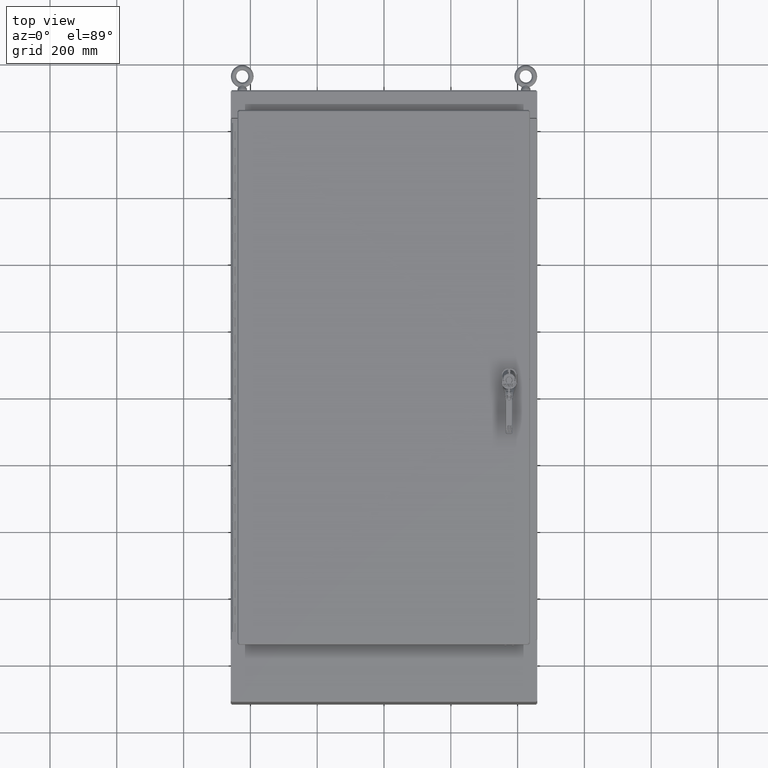
[diagram: clean part render]
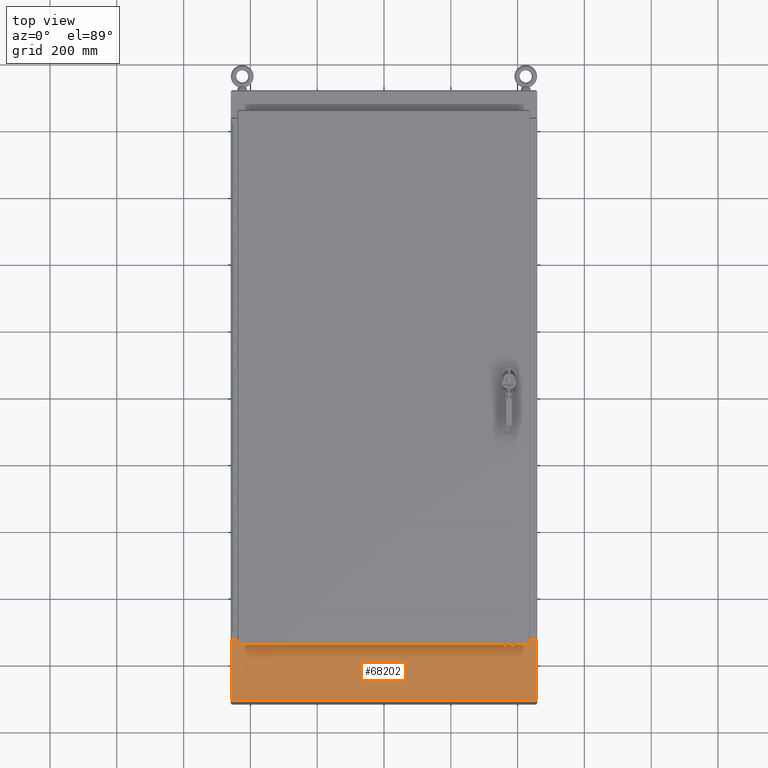
[diagram: same view with one face highlighted and labeled with its STEP entity id]
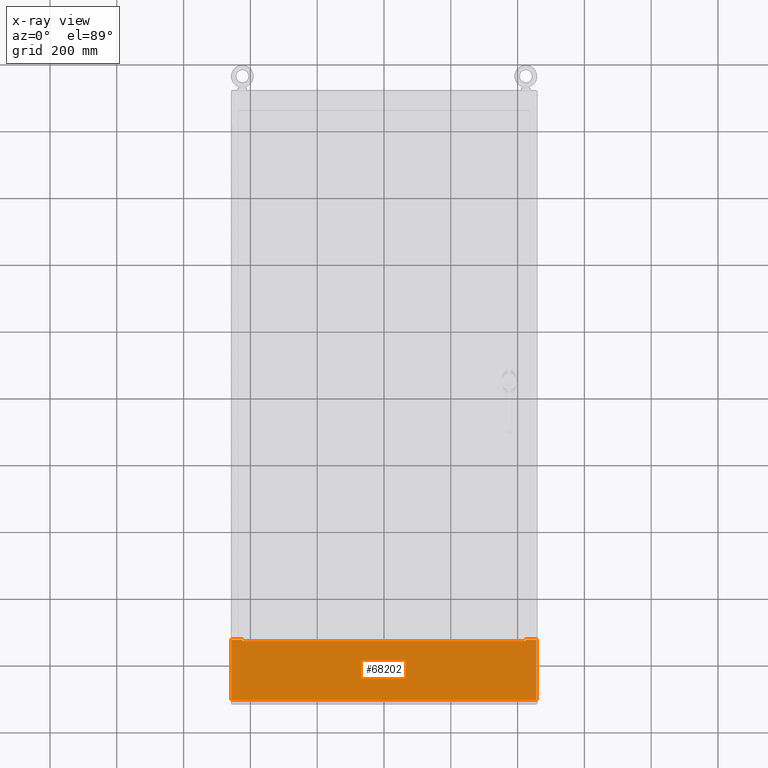
[diagram: x-ray of the same camera — body ghosted, the highlighted face saturated]
A machine part, top view. The second image highlights one B-rep face of the part: STEP entity #68202.
The next image is the same camera in x-ray: the body ghosted, the highlighted face saturated — about 0% of this face is hidden behind the body in this view.
In plain terms, the highlighted planar face has unit normal (0, -0, 1).
Its self-contained STEP definition (entity closure, byte-faithful):
#9289=PLANE('',#72041);
#10471=FACE_OUTER_BOUND('',#13423,.T.);
#13423=EDGE_LOOP('',(#50717,#50718,#50719,#50720,#50721,#50722,#50723,#50724,
#50725,#50726,#50727,#50728));
#20187=LINE('',#96623,#25305);
#20189=LINE('',#96629,#25307);
#20202=LINE('',#96668,#25320);
#20222=LINE('',#96709,#25340);
#20224=LINE('',#96713,#25342);
#20225=LINE('',#96716,#25343);
#20227=LINE('',#96719,#25345);
#20228=LINE('',#96722,#25346);
#20230=LINE('',#96725,#25348);
#20231=LINE('',#96728,#25349);
#20232=LINE('',#96730,#25350);
#20233=LINE('',#96731,#25351);
#25305=VECTOR('',#78764,0.393700787401575);
#25307=VECTOR('',#78768,0.393700787401575);
#25320=VECTOR('',#78799,0.393700787401575);
#25340=VECTOR('',#78843,0.393700787401575);
#25342=VECTOR('',#78847,0.393700787401575);
#25343=VECTOR('',#78850,0.393700787401575);
#25345=VECTOR('',#78854,0.393700787401575);
#25346=VECTOR('',#78857,0.393700787401575);
#25348=VECTOR('',#78861,0.393700787401575);
#25349=VECTOR('',#78864,0.393700787401575);
#25350=VECTOR('',#78865,0.393700787401575);
#25351=VECTOR('',#78866,0.179624999999999);
#30357=VERTEX_POINT('',#96617);
#30359=VERTEX_POINT('',#96621);
#30360=VERTEX_POINT('',#96625);
#30362=VERTEX_POINT('',#96628);
#30368=VERTEX_POINT('',#96641);
#30376=VERTEX_POINT('',#96658);
#30379=VERTEX_POINT('',#96666);
#30389=VERTEX_POINT('',#96711);
#30390=VERTEX_POINT('',#96715);
#30391=VERTEX_POINT('',#96721);
#30392=VERTEX_POINT('',#96727);
#30393=VERTEX_POINT('',#96729);
#39732=EDGE_CURVE('',#30357,#30359,#20187,.T.);
#39734=EDGE_CURVE('',#30362,#30360,#20189,.T.);
#39753=EDGE_CURVE('',#30360,#30379,#20202,.T.);
#39775=EDGE_CURVE('',#30376,#30368,#20222,.T.);
#39777=EDGE_CURVE('',#30368,#30389,#20224,.T.);
#39778=EDGE_CURVE('',#30390,#30357,#20225,.T.);
#39780=EDGE_CURVE('',#30389,#30390,#20227,.T.);
#39781=EDGE_CURVE('',#30391,#30376,#20228,.T.);
#39783=EDGE_CURVE('',#30379,#30391,#20230,.T.);
#39784=EDGE_CURVE('',#30392,#30359,#20231,.T.);
#39785=EDGE_CURVE('',#30392,#30393,#20232,.T.);
#39786=EDGE_CURVE('',#30362,#30393,#20233,.T.);
#50717=ORIENTED_EDGE('',*,*,#39732,.T.);
#50718=ORIENTED_EDGE('',*,*,#39784,.F.);
#50719=ORIENTED_EDGE('',*,*,#39785,.T.);
#50720=ORIENTED_EDGE('',*,*,#39786,.F.);
#50721=ORIENTED_EDGE('',*,*,#39734,.T.);
#50722=ORIENTED_EDGE('',*,*,#39753,.T.);
#50723=ORIENTED_EDGE('',*,*,#39783,.T.);
#50724=ORIENTED_EDGE('',*,*,#39781,.T.);
#50725=ORIENTED_EDGE('',*,*,#39775,.T.);
#50726=ORIENTED_EDGE('',*,*,#39777,.T.);
#50727=ORIENTED_EDGE('',*,*,#39780,.T.);
#50728=ORIENTED_EDGE('',*,*,#39778,.T.);
#68202=ADVANCED_FACE('',(#10471),#9289,.T.);
#72041=AXIS2_PLACEMENT_3D('',#96726,#78862,#78863);
#78764=DIRECTION('',(1.,-4.67339864028056E-16,-4.65265571231406E-35));
#78768=DIRECTION('',(1.,-4.67339864028056E-16,-4.65265571231406E-35));
#78799=DIRECTION('',(0.,-1.7195456062219E-15,1.));
#78843=DIRECTION('',(1.,-4.67339864028056E-16,0.));
#78847=DIRECTION('',(0.,-1.7195456062219E-15,1.));
#78850=DIRECTION('',(0.,1.7195456062219E-15,-1.));
#78854=DIRECTION('',(1.,-4.67339864028056E-16,0.));
#78857=DIRECTION('',(0.,1.7195456062219E-15,-1.));
#78861=DIRECTION('',(1.,-4.67339864028056E-16,0.));
#78862=DIRECTION('center_axis',(-4.67339864028056E-16,-1.,-1.7195456062219E-15));
#78863=DIRECTION('ref_axis',(1.,-4.67339864028056E-16,3.50484604917029E-16));
#78864=DIRECTION('',(5.91645678915759E-31,1.71512449944288E-15,-1.));
#78865=DIRECTION('',(-1.,4.67339864028056E-16,2.00421317790069E-31));
#78866=DIRECTION('',(-6.15811506551547E-31,-1.77635683940025E-15,1.));
#96617=CARTESIAN_POINT('',(16.6877,-9.0105,-7.219));
#96621=CARTESIAN_POINT('',(17.9585,-9.0105,-7.219));
#96623=CARTESIAN_POINT('',(8.34375,-9.0105,-7.219));
#96625=CARTESIAN_POINT('',(-16.6877,-9.01049999999999,-7.219));
#96628=CARTESIAN_POINT('',(-17.9585,-9.01049999999998,-7.219));
#96629=CARTESIAN_POINT('',(-8.97925,-9.01049999999999,-7.219));
#96641=CARTESIAN_POINT('',(16.6875,-9.0105,-7.07325));
#96658=CARTESIAN_POINT('',(-16.6875,-9.01049999999998,-7.07325));
#96666=CARTESIAN_POINT('',(-16.6877,-9.01049999999998,-7.07305));
#96668=CARTESIAN_POINT('',(-16.6877,-9.01049999999999,-5.31889267744987));
#96709=CARTESIAN_POINT('',(8.34375,-9.0105,-7.07325));
#96711=CARTESIAN_POINT('',(16.6875,-9.0105,-7.07305));
#96713=CARTESIAN_POINT('',(16.6875,-9.0105,-5.31889267744987));
#96715=CARTESIAN_POINT('',(16.6877,-9.0105,-7.07305));
#96716=CARTESIAN_POINT('',(16.6877,-9.0105,-5.41786767744987));
#96719=CARTESIAN_POINT('',(8.34385,-9.0105,-7.07305));
#96721=CARTESIAN_POINT('',(-16.6875,-9.01049999999998,-7.07305));
#96722=CARTESIAN_POINT('',(-16.6875,-9.01049999999999,-5.41786767744987));
#96725=CARTESIAN_POINT('',(-8.34375,-9.01049999999999,-7.07305));
#96726=CARTESIAN_POINT('Origin',(5.13898317000041E-16,-9.0105,-3.56473535489973));
#96727=CARTESIAN_POINT('',(17.9585,-9.01050000000001,-0.140624999999999));
#96728=CARTESIAN_POINT('',(17.9585,-9.01050000000001,-0.140624999999999));
#96729=CARTESIAN_POINT('',(-17.9585,-9.0105,-0.140624999999999));
#96730=CARTESIAN_POINT('',(1.6089888870961E-15,-9.01050000000001,-0.140625000000002));
#96731=CARTESIAN_POINT('',(-17.9585,-9.0105,0.423683580401065));